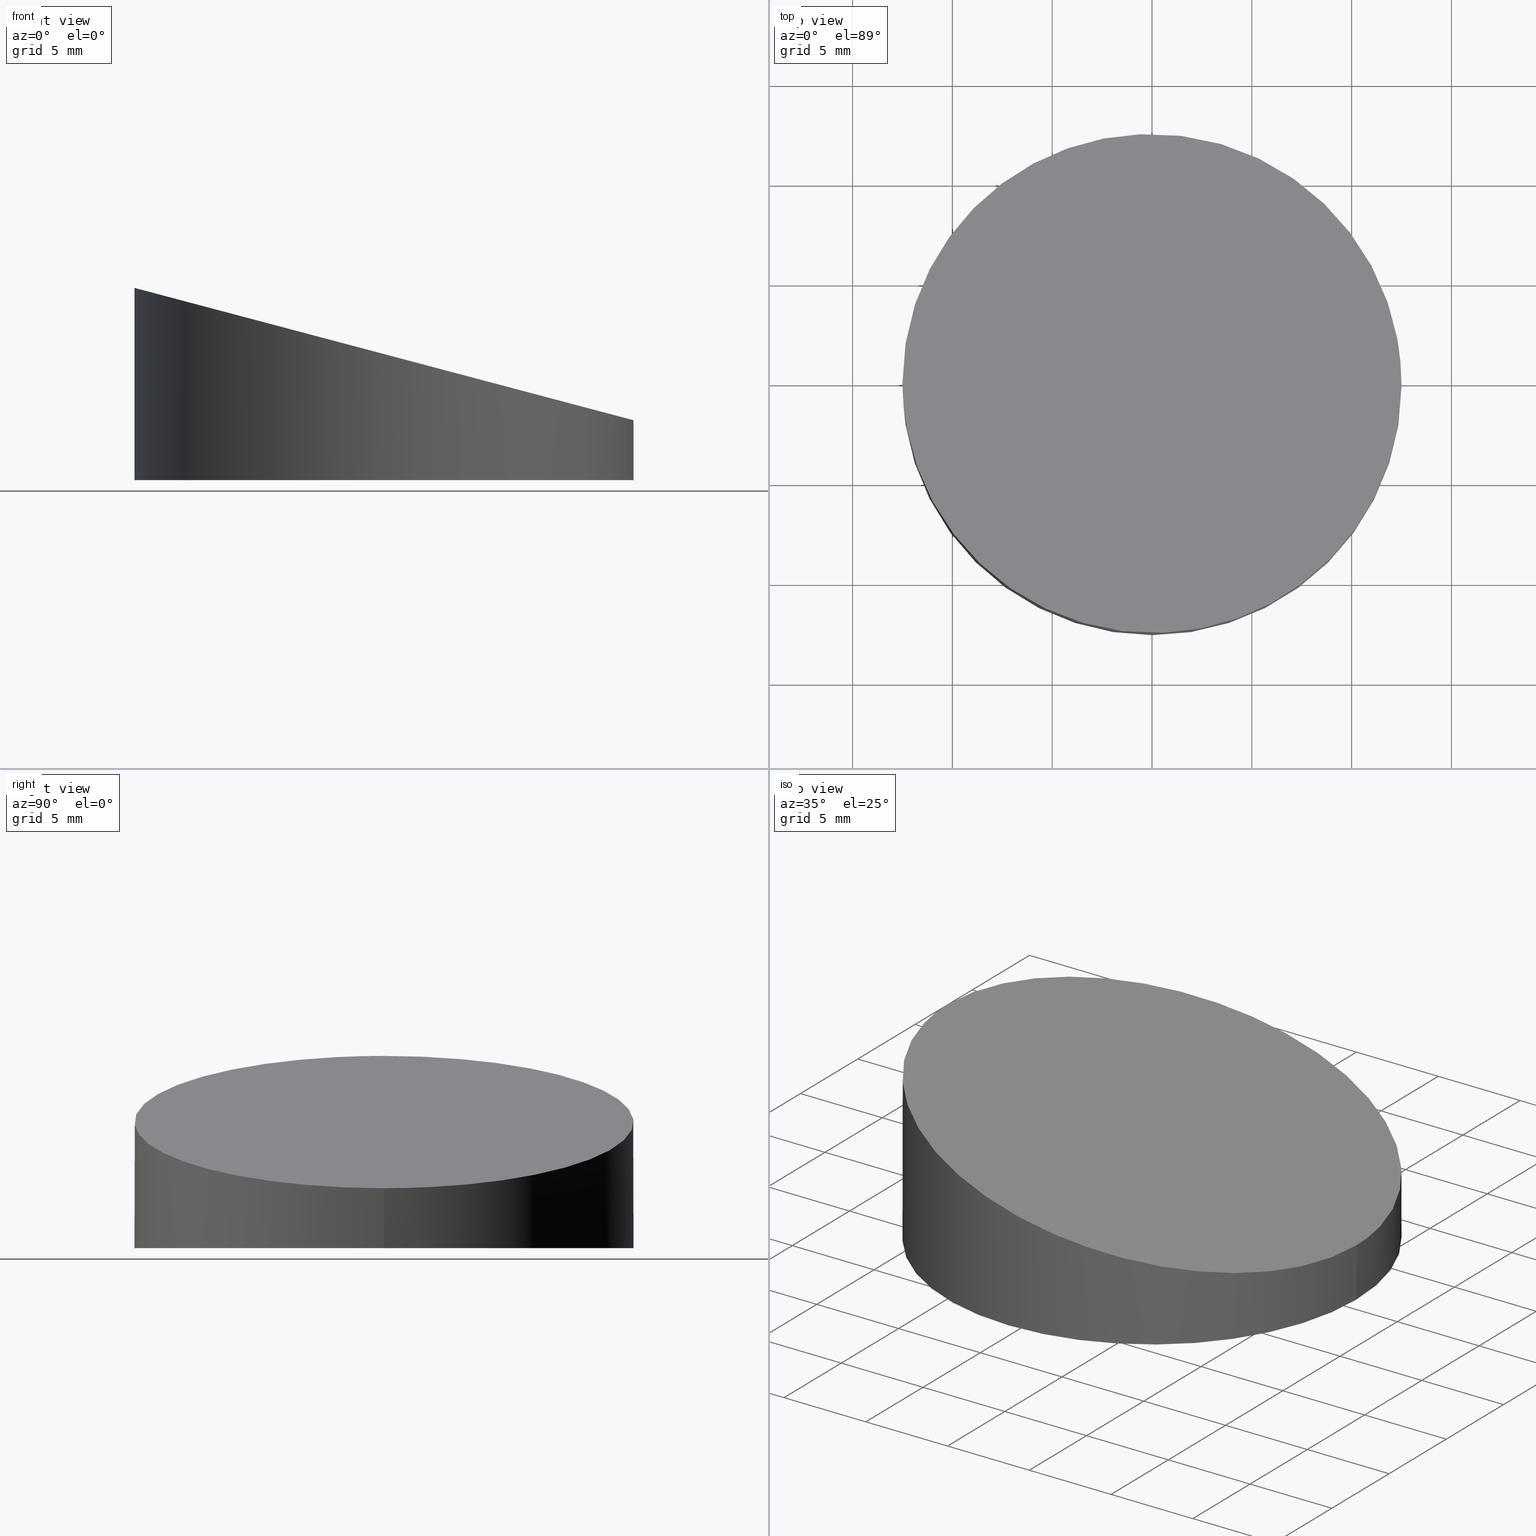
[diagram: canonical four-view strip — front | top / right | iso, engineering-drawing reading convention]
A machine part, canonical four-view strip (front | top / right | iso — engineering-drawing reading convention). The complete STEP part file that produces these views, byte-faithful:
ISO-10303-21;
HEADER;
FILE_DESCRIPTION (( 'STEP AP203' ),
    '1' );
FILE_NAME ('373520.STEP',
    '2019-07-24T07:40:03',
    ( '' ),
    ( '' ),
    'SwSTEP 2.0',
    'SolidWorks 2016',
    '' );
FILE_SCHEMA (( 'CONFIG_CONTROL_DESIGN' ));
ENDSEC;

DATA;
#1 = PERSON_AND_ORGANIZATION_ROLE ( 'creator' ) ;
#2 = DATE_AND_TIME ( #191, #59 ) ;
#3 = EDGE_CURVE ( 'NONE', #5, #48, #141, .T. ) ;
#4 = LOCAL_TIME ( 15, 40, 3.000000000000000000, #100 ) ;
#5 = VERTEX_POINT ( 'NONE', #26 ) ;
#6 = PERSON_AND_ORGANIZATION ( #171, #130 ) ;
#7 = CC_DESIGN_PERSON_AND_ORGANIZATION_ASSIGNMENT ( #21, #12, ( #233 ) ) ;
#8 = ORIENTED_EDGE ( 'NONE', *, *, #135, .F. ) ;
#9 = CC_DESIGN_DATE_AND_TIME_ASSIGNMENT ( #194, #20, ( #201 ) ) ;
#10 = CARTESIAN_POINT ( 'NONE',  ( -12.49999999999999500, -24.99999999999998900, 9.628629890433083800 ) ) ;
#11 = PERSON_AND_ORGANIZATION ( #171, #130 ) ;
#12 = PERSON_AND_ORGANIZATION_ROLE ( 'design_supplier' ) ;
#13 = CC_DESIGN_PERSON_AND_ORGANIZATION_ASSIGNMENT ( #98, #223, ( #133 ) ) ;
#14 = DATE_TIME_ROLE ( 'classification_date' ) ;
#15 = PERSON_AND_ORGANIZATION_ROLE ( 'creator' ) ;
#16 = FACE_OUTER_BOUND ( 'NONE', #109, .T. ) ;
#17 = CARTESIAN_POINT ( 'NONE',  ( 0.0000000000000000000, 0.0000000000000000000, 0.0000000000000000000 ) ) ;
#18 = PRODUCT_RELATED_PRODUCT_CATEGORY ( 'detail', '', ( #133 ) ) ;
#19 = PERSON_AND_ORGANIZATION ( #171, #130 ) ;
#20 = DATE_TIME_ROLE ( 'classification_date' ) ;
#21 = PERSON_AND_ORGANIZATION ( #171, #130 ) ;
#22 = PERSON_AND_ORGANIZATION ( #171, #130 ) ;
#23 = CC_DESIGN_PERSON_AND_ORGANIZATION_ASSIGNMENT ( #19, #94, ( #201 ) ) ;
#24 = CALENDAR_DATE ( 2019, 24, 7 ) ;
#25 = PERSON_AND_ORGANIZATION ( #171, #130 ) ;
#26 = CARTESIAN_POINT ( 'NONE',  ( -12.49999999999999600, 0.0000000000000000000, 9.628629890433083800 ) ) ;
#27 =( BOUNDED_CURVE ( )  B_SPLINE_CURVE ( 3, ( #82, #214, #63, #179 ),
 .UNSPECIFIED., .F., .F. ) 
 B_SPLINE_CURVE_WITH_KNOTS ( ( 4, 4 ),
 ( 3.141592653589793100, 6.283185307179586200 ),
 .UNSPECIFIED. ) 
 CURVE ( )  GEOMETRIC_REPRESENTATION_ITEM ( )  RATIONAL_B_SPLINE_CURVE ( ( 1.000000000000000000, 0.3333333333333333700, 0.3333333333333333700, 1.000000000000000000 ) ) 
 REPRESENTATION_ITEM ( '' )  );
#28 = PERSON_AND_ORGANIZATION ( #171, #130 ) ;
#29 = EDGE_LOOP ( 'NONE', ( #8, #101 ) ) ;
#30 = DIRECTION ( 'NONE',  ( -0.2562893731329976000, 0.0000000000000000000, -0.9666001020169070500 ) ) ;
#31 = APPROVAL_PERSON_ORGANIZATION ( #108, #239, #151 ) ;
#32 = DIRECTION ( 'NONE',  ( 1.000000000000000000, 0.0000000000000000000, -0.0000000000000000000 ) ) ;
#33 = CARTESIAN_POINT ( 'NONE',  ( 0.0000000000000000000, 0.0000000000000000000, 0.0000000000000000000 ) ) ;
#34 = CALENDAR_DATE ( 2019, 24, 7 ) ;
#35 = CIRCLE ( 'NONE', #43, 12.49999999999999600 ) ;
#36 = AXIS2_PLACEMENT_3D ( 'NONE', #160, #30, #83 ) ;
#37 = APPROVAL_ROLE ( '' ) ;
#38 =( LENGTH_UNIT ( ) NAMED_UNIT ( * ) SI_UNIT ( .MILLI., .METRE. ) );
#39 = CC_DESIGN_DATE_AND_TIME_ASSIGNMENT ( #137, #58, ( #178 ) ) ;
#40 = CALENDAR_DATE ( 2019, 24, 7 ) ;
#41 = APPROVAL_STATUS ( 'not_yet_approved' ) ;
#42 = APPROVAL_ROLE ( '' ) ;
#43 = AXIS2_PLACEMENT_3D ( 'NONE', #17, #145, #70 ) ;
#44 = COORDINATED_UNIVERSAL_TIME_OFFSET ( 8, 0, .AHEAD. ) ;
#45 = ORIENTED_EDGE ( 'NONE', *, *, #128, .T. ) ;
#46 = APPROVAL_PERSON_ORGANIZATION ( #72, #79, #42 ) ;
#47 = LOCAL_TIME ( 15, 40, 3.000000000000000000, #253 ) ;
#48 = VERTEX_POINT ( 'NONE', #234 ) ;
#49 = DIRECTION ( 'NONE',  ( 1.000000000000000000, 0.0000000000000000000, 0.0000000000000000000 ) ) ;
#50 = FACE_OUTER_BOUND ( 'NONE', #62, .T. ) ;
#51 = PRODUCT_DEFINITION_SHAPE ( 'NONE', 'NONE',  #170 ) ;
#52 = SECURITY_CLASSIFICATION_LEVEL ( 'unclassified' ) ;
#53 = APPROVAL_DATE_TIME ( #218, #79 ) ;
#54 = ORIENTED_EDGE ( 'NONE', *, *, #211, .F. ) ;
#55 = APPLICATION_PROTOCOL_DEFINITION ( 'international standard', 'config_control_design', 1994, #164 ) ;
#56 = ORIENTED_EDGE ( 'NONE', *, *, #3, .T. ) ;
#57 = SECURITY_CLASSIFICATION_LEVEL ( 'unclassified' ) ;
#58 = DATE_TIME_ROLE ( 'creation_date' ) ;
#59 = LOCAL_TIME ( 15, 40, 3.000000000000000000, #245 ) ;
#60 = PERSON_AND_ORGANIZATION ( #171, #130 ) ;
#61 = DIRECTION ( 'NONE',  ( 0.0000000000000000000, 0.0000000000000000000, 1.000000000000000000 ) ) ;
#62 = EDGE_LOOP ( 'NONE', ( #54, #45, #56, #154 ) ) ;
#63 = CARTESIAN_POINT ( 'NONE',  ( 12.50000000000000000, 24.99999999999998900, 2.999999999999999600 ) ) ;
#64 = APPROVAL_PERSON_ORGANIZATION ( #78, #116, #173 ) ;
#65 = CARTESIAN_POINT ( 'NONE',  ( 12.49999999999999600, 1.530808498934191100E-015, 3.000000000000000000 ) ) ;
#66 = ORIENTED_EDGE ( 'NONE', *, *, #3, .F. ) ;
#67 = APPLICATION_PROTOCOL_DEFINITION ( 'international standard', 'config_control_design', 1994, #184 ) ;
#68 = MANIFOLD_SOLID_BREP ( '�г�-����1', #112 ) ;
#69 = EDGE_CURVE ( 'NONE', #48, #215, #148, .T. ) ;
#70 = DIRECTION ( 'NONE',  ( 1.000000000000000000, 0.0000000000000000000, 0.0000000000000000000 ) ) ;
#71 = ADVANCED_FACE ( 'NONE', ( #150 ), #140, .F. ) ;
#72 = PERSON_AND_ORGANIZATION ( #171, #130 ) ;
#73 = ADVANCED_FACE ( 'NONE', ( #50 ), #166, .T. ) ;
#74 = DESIGN_CONTEXT ( 'detailed design', #222, 'design' ) ;
#75 = PERSON_AND_ORGANIZATION ( #171, #130 ) ;
#76 = APPROVAL_PERSON_ORGANIZATION ( #22, #155, #37 ) ;
#77 = APPROVAL ( #220, 'δָ��' ) ;
#78 = PERSON_AND_ORGANIZATION ( #171, #130 ) ;
#79 = APPROVAL ( #41, 'δָ��' ) ;
#80 = CARTESIAN_POINT ( 'NONE',  ( -12.49999999999999600, 0.0000000000000000000, 10.00000000000000000 ) ) ;
#81 = DATE_AND_TIME ( #156, #209 ) ;
#82 = CARTESIAN_POINT ( 'NONE',  ( -12.49999999999999600, 0.0000000000000000000, 9.628629890433083800 ) ) ;
#83 = DIRECTION ( 'NONE',  ( -0.9666001020169070500, 0.0000000000000000000, 0.2562893731329976000 ) ) ;
#84 = AXIS2_PLACEMENT_3D ( 'NONE', #86, #61, #49 ) ;
#85 = APPROVAL_DATE_TIME ( #174, #77 ) ;
#86 = CARTESIAN_POINT ( 'NONE',  ( 0.0000000000000000000, 0.0000000000000000000, 0.0000000000000000000 ) ) ;
#87 = DIRECTION ( 'NONE',  ( 1.000000000000000000, 0.0000000000000000000, 0.0000000000000000000 ) ) ;
#88 = COORDINATED_UNIVERSAL_TIME_OFFSET ( 8, 0, .AHEAD. ) ;
#89 = APPROVAL_ROLE ( '' ) ;
#90 = DIRECTION ( 'NONE',  ( -0.0000000000000000000, -0.0000000000000000000, -1.000000000000000000 ) ) ;
#91 = CC_DESIGN_PERSON_AND_ORGANIZATION_ASSIGNMENT ( #93, #230, ( #178 ) ) ;
#92 = APPLICATION_PROTOCOL_DEFINITION ( 'international standard', 'config_control_design', 1994, #110 ) ;
#93 = PERSON_AND_ORGANIZATION ( #171, #130 ) ;
#94 = PERSON_AND_ORGANIZATION_ROLE ( 'classification_officer' ) ;
#95 = ORIENTED_EDGE ( 'NONE', *, *, #199, .T. ) ;
#96 = UNCERTAINTY_MEASURE_WITH_UNIT (LENGTH_MEASURE( 1.000000000000000100E-005 ), #38, 'distance_accuracy_value', 'NONE');
#97 = AXIS2_PLACEMENT_3D ( 'NONE', #102, #159, #181 ) ;
#98 = PERSON_AND_ORGANIZATION ( #171, #130 ) ;
#99 = APPROVAL_DATE_TIME ( #161, #217 ) ;
#100 = COORDINATED_UNIVERSAL_TIME_OFFSET ( 8, 0, .AHEAD. ) ;
#101 = ORIENTED_EDGE ( 'NONE', *, *, #128, .F. ) ;
#102 = CARTESIAN_POINT ( 'NONE',  ( 0.0000000000000000000, 0.0000000000000000000, 10.00000000000000000 ) ) ;
#103 = CARTESIAN_POINT ( 'NONE',  ( 12.49999999999999600, 1.530808498934191100E-015, 10.00000000000000000 ) ) ;
#104 = CC_DESIGN_PERSON_AND_ORGANIZATION_ASSIGNMENT ( #185, #243, ( #233 ) ) ;
#105 = CARTESIAN_POINT ( 'NONE',  ( -12.49999999999999600, 0.0000000000000000000, 9.628629890433083800 ) ) ;
#106 = PRODUCT ( '373520', '373520', '', ( #203 ) ) ;
#107 = APPROVAL_ROLE ( '' ) ;
#108 = PERSON_AND_ORGANIZATION ( #171, #130 ) ;
#109 = EDGE_LOOP ( 'NONE', ( #120, #192, #95, #66 ) ) ;
#110 = APPLICATION_CONTEXT ( 'configuration controlled 3d designs of mechanical parts and assemblies' ) ;
#111 =( GEOMETRIC_REPRESENTATION_CONTEXT ( 3 ) GLOBAL_UNCERTAINTY_ASSIGNED_CONTEXT ( ( #96 ) ) GLOBAL_UNIT_ASSIGNED_CONTEXT ( ( #38, #149, #165 ) ) REPRESENTATION_CONTEXT ( 'NONE', 'WORKASPACE' ) );
#112 = CLOSED_SHELL ( 'NONE', ( #252, #73, #71, #132 ) ) ;
#113 = APPROVAL_DATE_TIME ( #81, #116 ) ;
#114 = LINE ( 'NONE', #103, #204 ) ;
#115 = PERSON_AND_ORGANIZATION_ROLE ( 'design_supplier' ) ;
#116 = APPROVAL ( #168, 'δָ��' ) ;
#117 = DIRECTION ( 'NONE',  ( -0.0000000000000000000, -0.0000000000000000000, -1.000000000000000000 ) ) ;
#118 = CC_DESIGN_PERSON_AND_ORGANIZATION_ASSIGNMENT ( #75, #127, ( #195 ) ) ;
#119 = LOCAL_TIME ( 15, 40, 3.000000000000000000, #129 ) ;
#120 = ORIENTED_EDGE ( 'NONE', *, *, #135, .T. ) ;
#121 = CARTESIAN_POINT ( 'NONE',  ( 0.0000000000000000000, 0.0000000000000000000, 0.0000000000000000000 ) ) ;
#122 = LOCAL_TIME ( 15, 40, 3.000000000000000000, #139 ) ;
#123 = AXIS2_PLACEMENT_3D ( 'NONE', #33, #163, #87 ) ;
#124 = CARTESIAN_POINT ( 'NONE',  ( 12.50000000000000000, -24.99999999999998900, 2.999999999999999600 ) ) ;
#125 = DATE_AND_TIME ( #40, #224 ) ;
#126 = DATE_TIME_ROLE ( 'creation_date' ) ;
#127 = PERSON_AND_ORGANIZATION_ROLE ( 'classification_officer' ) ;
#128 = EDGE_CURVE ( 'NONE', #162, #5, #186, .T. ) ;
#129 = COORDINATED_UNIVERSAL_TIME_OFFSET ( 8, 0, .AHEAD. ) ;
#130 = ORGANIZATION ( 'δָ��', 'δָ��', '' ) ;
#131 = CARTESIAN_POINT ( 'NONE',  ( 12.49999999999999600, 1.530808498934191100E-015, 0.0000000000000000000 ) ) ;
#132 = ADVANCED_FACE ( 'NONE', ( #213 ), #216, .F. ) ;
#133 = PRODUCT ( '373520', '373520', '', ( #205 ) ) ;
#134 = CARTESIAN_POINT ( 'NONE',  ( 0.0000000000000000000, 0.0000000000000000000, 10.00000000000000000 ) ) ;
#135 = EDGE_CURVE ( 'NONE', #5, #162, #27, .T. ) ;
#136 = APPROVAL_DATE_TIME ( #172, #155 ) ;
#137 = DATE_AND_TIME ( #231, #119 ) ;
#138 = CC_DESIGN_PERSON_AND_ORGANIZATION_ASSIGNMENT ( #25, #225, ( #106 ) ) ;
#139 = COORDINATED_UNIVERSAL_TIME_OFFSET ( 8, 0, .AHEAD. ) ;
#140 = PLANE ( 'NONE',  #183 ) ;
#141 = LINE ( 'NONE', #80, #226 ) ;
#142 = ADVANCED_BREP_SHAPE_REPRESENTATION ( '373520', ( #68, #196 ), #111 ) ;
#143 = COORDINATED_UNIVERSAL_TIME_OFFSET ( 8, 0, .AHEAD. ) ;
#144 = CC_DESIGN_DATE_AND_TIME_ASSIGNMENT ( #235, #14, ( #195 ) ) ;
#145 = DIRECTION ( 'NONE',  ( 0.0000000000000000000, 0.0000000000000000000, 1.000000000000000000 ) ) ;
#146 = CALENDAR_DATE ( 2019, 24, 7 ) ;
#147 = APPROVAL_STATUS ( 'not_yet_approved' ) ;
#148 = CIRCLE ( 'NONE', #84, 12.49999999999999600 ) ;
#149 =( NAMED_UNIT ( * ) PLANE_ANGLE_UNIT ( ) SI_UNIT ( $, .RADIAN. ) );
#150 = FACE_OUTER_BOUND ( 'NONE', #157, .T. ) ;
#151 = APPROVAL_ROLE ( '' ) ;
#152 = PERSON_AND_ORGANIZATION ( #171, #130 ) ;
#153 = AXIS2_PLACEMENT_3D ( 'NONE', #134, #90, #247 ) ;
#154 = ORIENTED_EDGE ( 'NONE', *, *, #69, .T. ) ;
#155 = APPROVAL ( #250, 'δָ��' ) ;
#156 = CALENDAR_DATE ( 2019, 24, 7 ) ;
#157 = EDGE_LOOP ( 'NONE', ( #246, #219 ) ) ;
#158 = CC_DESIGN_APPROVAL ( #239, ( #201 ) ) ;
#159 = DIRECTION ( 'NONE',  ( -0.0000000000000000000, -0.0000000000000000000, -1.000000000000000000 ) ) ;
#160 = CARTESIAN_POINT ( 'NONE',  ( 12.49999999999999600, -25.00000000000000000, 3.000000000000000000 ) ) ;
#161 = DATE_AND_TIME ( #24, #237 ) ;
#162 = VERTEX_POINT ( 'NONE', #65 ) ;
#163 = DIRECTION ( 'NONE',  ( 0.0000000000000000000, 0.0000000000000000000, 1.000000000000000000 ) ) ;
#164 = APPLICATION_CONTEXT ( 'configuration controlled 3d designs of mechanical parts and assemblies' ) ;
#165 =( NAMED_UNIT ( * ) SI_UNIT ( $, .STERADIAN. ) SOLID_ANGLE_UNIT ( ) );
#166 = CYLINDRICAL_SURFACE ( 'NONE', #97, 12.49999999999999600 ) ;
#167 = CC_DESIGN_APPROVAL ( #116, ( #229 ) ) ;
#168 = APPROVAL_STATUS ( 'not_yet_approved' ) ;
#169 = DESIGN_CONTEXT ( 'detailed design', #164, 'design' ) ;
#170 = PRODUCT_DEFINITION ( 'δ֪', '', #233, #74 ) ;
#171 = PERSON ( 'δָ��', 'δָ��', 'δָ��', ('δָ��'), ('δָ��'), ('δָ��') ) ;
#172 = DATE_AND_TIME ( #198, #4 ) ;
#173 = APPROVAL_ROLE ( '' ) ;
#174 = DATE_AND_TIME ( #212, #228 ) ;
#175 = CC_DESIGN_PERSON_AND_ORGANIZATION_ASSIGNMENT ( #152, #1, ( #229 ) ) ;
#176 = APPROVAL_PERSON_ORGANIZATION ( #6, #217, #89 ) ;
#177 = APPROVAL_PERSON_ORGANIZATION ( #11, #77, #107 ) ;
#178 = PRODUCT_DEFINITION ( 'δ֪', '', #229, #169 ) ;
#179 = CARTESIAN_POINT ( 'NONE',  ( 12.49999999999999600, 1.530808498934191100E-015, 3.000000000000000000 ) ) ;
#180 = CC_DESIGN_SECURITY_CLASSIFICATION ( #201, ( #229 ) ) ;
#181 = DIRECTION ( 'NONE',  ( -1.000000000000000000, 0.0000000000000000000, 0.0000000000000000000 ) ) ;
#182 = CALENDAR_DATE ( 2019, 24, 7 ) ;
#183 = AXIS2_PLACEMENT_3D ( 'NONE', #121, #240, #32 ) ;
#184 = APPLICATION_CONTEXT ( 'configuration controlled 3d designs of mechanical parts and assemblies' ) ;
#185 = PERSON_AND_ORGANIZATION ( #171, #130 ) ;
#186 =( BOUNDED_CURVE ( )  B_SPLINE_CURVE ( 3, ( #241, #124, #10, #105 ),
 .UNSPECIFIED., .F., .T. ) 
 B_SPLINE_CURVE_WITH_KNOTS ( ( 4, 4 ),
 ( 0.0000000000000000000, 3.141592653589793100 ),
 .UNSPECIFIED. ) 
 CURVE ( )  GEOMETRIC_REPRESENTATION_ITEM ( )  RATIONAL_B_SPLINE_CURVE ( ( 1.000000000000000000, 0.3333333333333333700, 0.3333333333333333700, 1.000000000000000000 ) ) 
 REPRESENTATION_ITEM ( '' )  );
#187 = DIRECTION ( 'NONE',  ( 1.000000000000000000, 0.0000000000000000000, 0.0000000000000000000 ) ) ;
#188 = APPROVAL_STATUS ( 'not_yet_approved' ) ;
#189 = COORDINATED_UNIVERSAL_TIME_OFFSET ( 8, 0, .AHEAD. ) ;
#190 = CC_DESIGN_PERSON_AND_ORGANIZATION_ASSIGNMENT ( #60, #115, ( #229 ) ) ;
#191 = CALENDAR_DATE ( 2019, 24, 7 ) ;
#192 = ORIENTED_EDGE ( 'NONE', *, *, #211, .T. ) ;
#193 = CC_DESIGN_APPROVAL ( #155, ( #170 ) ) ;
#194 = DATE_AND_TIME ( #34, #47 ) ;
#195 = SECURITY_CLASSIFICATION ( '', '', #52 ) ;
#196 = AXIS2_PLACEMENT_3D ( 'NONE', #207, #244, #187 ) ;
#197 = APPROVAL_DATE_TIME ( #2, #239 ) ;
#198 = CALENDAR_DATE ( 2019, 24, 7 ) ;
#199 = EDGE_CURVE ( 'NONE', #215, #48, #35, .T. ) ;
#200 = PRODUCT_DEFINITION_SHAPE ( 'NONE', 'NONE',  #178 ) ;
#201 = SECURITY_CLASSIFICATION ( '', '', #57 ) ;
#202 = COORDINATED_UNIVERSAL_TIME_OFFSET ( 8, 0, .AHEAD. ) ;
#203 = MECHANICAL_CONTEXT ( 'NONE', #110, 'mechanical' ) ;
#204 = VECTOR ( 'NONE', #206, 1000.000000000000000 ) ;
#205 = MECHANICAL_CONTEXT ( 'NONE', #184, 'mechanical' ) ;
#206 = DIRECTION ( 'NONE',  ( -0.0000000000000000000, -0.0000000000000000000, -1.000000000000000000 ) ) ;
#207 = CARTESIAN_POINT ( 'NONE',  ( 0.0000000000000000000, 0.0000000000000000000, 0.0000000000000000000 ) ) ;
#208 = CC_DESIGN_DATE_AND_TIME_ASSIGNMENT ( #125, #126, ( #170 ) ) ;
#209 = LOCAL_TIME ( 15, 40, 3.000000000000000000, #189 ) ;
#210 = CC_DESIGN_SECURITY_CLASSIFICATION ( #195, ( #233 ) ) ;
#211 = EDGE_CURVE ( 'NONE', #162, #215, #114, .T. ) ;
#212 = CALENDAR_DATE ( 2019, 24, 7 ) ;
#213 = FACE_OUTER_BOUND ( 'NONE', #29, .T. ) ;
#214 = CARTESIAN_POINT ( 'NONE',  ( -12.50000000000000000, 24.99999999999998900, 9.628629890433083800 ) ) ;
#215 = VERTEX_POINT ( 'NONE', #131 ) ;
#216 = PLANE ( 'NONE',  #36 ) ;
#217 = APPROVAL ( #147, 'δָ��' ) ;
#218 = DATE_AND_TIME ( #182, #242 ) ;
#219 = ORIENTED_EDGE ( 'NONE', *, *, #199, .F. ) ;
#220 = APPROVAL_STATUS ( 'not_yet_approved' ) ;
#221 = PRODUCT_RELATED_PRODUCT_CATEGORY ( 'detail', '', ( #106 ) ) ;
#222 = APPLICATION_CONTEXT ( 'configuration controlled 3d designs of mechanical parts and assemblies' ) ;
#223 = PERSON_AND_ORGANIZATION_ROLE ( 'design_owner' ) ;
#224 = LOCAL_TIME ( 15, 40, 3.000000000000000000, #88 ) ;
#225 = PERSON_AND_ORGANIZATION_ROLE ( 'design_owner' ) ;
#226 = VECTOR ( 'NONE', #117, 1000.000000000000000 ) ;
#227 = CC_DESIGN_PERSON_AND_ORGANIZATION_ASSIGNMENT ( #28, #15, ( #170 ) ) ;
#228 = LOCAL_TIME ( 15, 40, 3.000000000000000000, #143 ) ;
#229 = PRODUCT_DEFINITION_FORMATION_WITH_SPECIFIED_SOURCE ( '�κ�', '', #133, .NOT_KNOWN. ) ;
#230 = PERSON_AND_ORGANIZATION_ROLE ( 'creator' ) ;
#231 = CALENDAR_DATE ( 2019, 24, 7 ) ;
#232 = SHAPE_DEFINITION_REPRESENTATION ( #200, #142 ) ;
#233 = PRODUCT_DEFINITION_FORMATION_WITH_SPECIFIED_SOURCE ( '�κ�', '', #106, .NOT_KNOWN. ) ;
#234 = CARTESIAN_POINT ( 'NONE',  ( -12.49999999999999600, 0.0000000000000000000, 0.0000000000000000000 ) ) ;
#235 = DATE_AND_TIME ( #146, #122 ) ;
#236 = CC_DESIGN_APPROVAL ( #217, ( #195 ) ) ;
#237 = LOCAL_TIME ( 15, 40, 3.000000000000000000, #44 ) ;
#238 = CYLINDRICAL_SURFACE ( 'NONE', #153, 12.49999999999999600 ) ;
#239 = APPROVAL ( #188, 'δָ��' ) ;
#240 = DIRECTION ( 'NONE',  ( 0.0000000000000000000, 0.0000000000000000000, 1.000000000000000000 ) ) ;
#241 = CARTESIAN_POINT ( 'NONE',  ( 12.49999999999999600, 1.530808498934191100E-015, 3.000000000000000000 ) ) ;
#242 = LOCAL_TIME ( 15, 40, 3.000000000000000000, #202 ) ;
#243 = PERSON_AND_ORGANIZATION_ROLE ( 'creator' ) ;
#244 = DIRECTION ( 'NONE',  ( 0.0000000000000000000, 0.0000000000000000000, 1.000000000000000000 ) ) ;
#245 = COORDINATED_UNIVERSAL_TIME_OFFSET ( 8, 0, .AHEAD. ) ;
#246 = ORIENTED_EDGE ( 'NONE', *, *, #69, .F. ) ;
#247 = DIRECTION ( 'NONE',  ( -1.000000000000000000, 0.0000000000000000000, 0.0000000000000000000 ) ) ;
#248 = CC_DESIGN_APPROVAL ( #77, ( #233 ) ) ;
#249 = APPLICATION_PROTOCOL_DEFINITION ( 'international standard', 'config_control_design', 1994, #222 ) ;
#250 = APPROVAL_STATUS ( 'not_yet_approved' ) ;
#251 = CC_DESIGN_APPROVAL ( #79, ( #178 ) ) ;
#252 = ADVANCED_FACE ( 'NONE', ( #16 ), #238, .T. ) ;
#253 = COORDINATED_UNIVERSAL_TIME_OFFSET ( 8, 0, .AHEAD. ) ;
ENDSEC;
END-ISO-10303-21;
